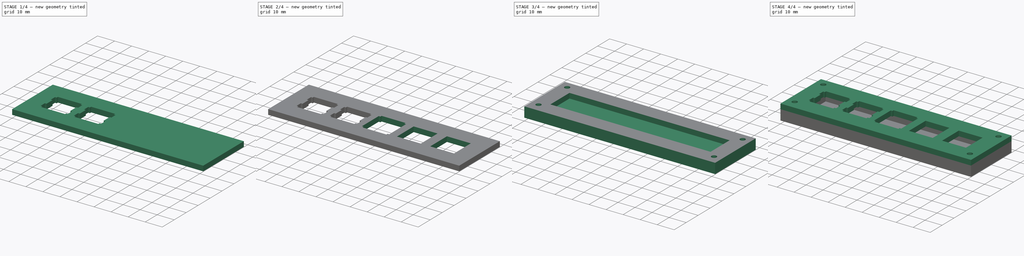
[diagram: build sequence overview — one tinted view per stage of 4, left to right]
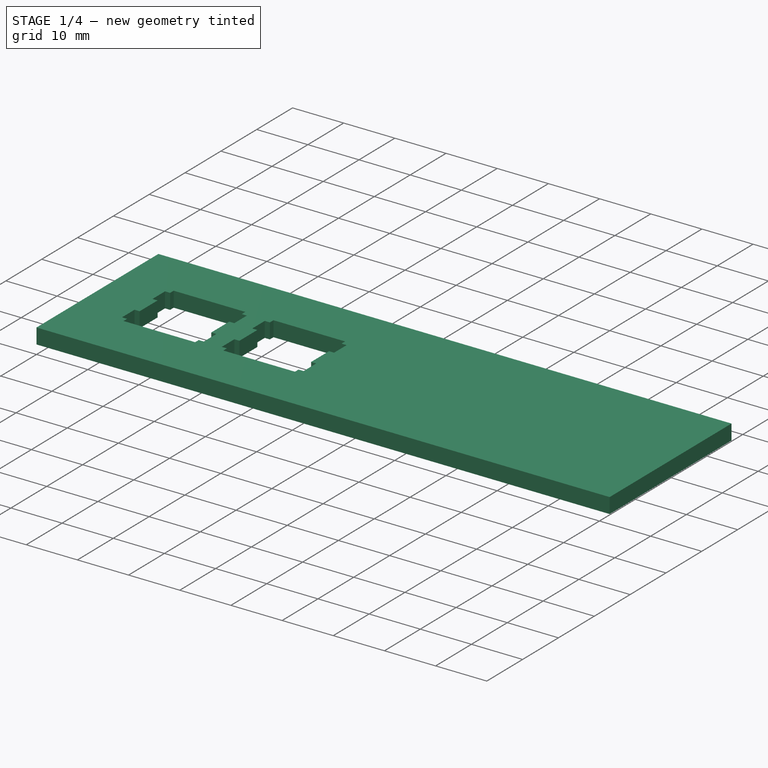
[diagram: stage 1 of 4 — iso view after this stage's code; geometry added in this stage tinted green]
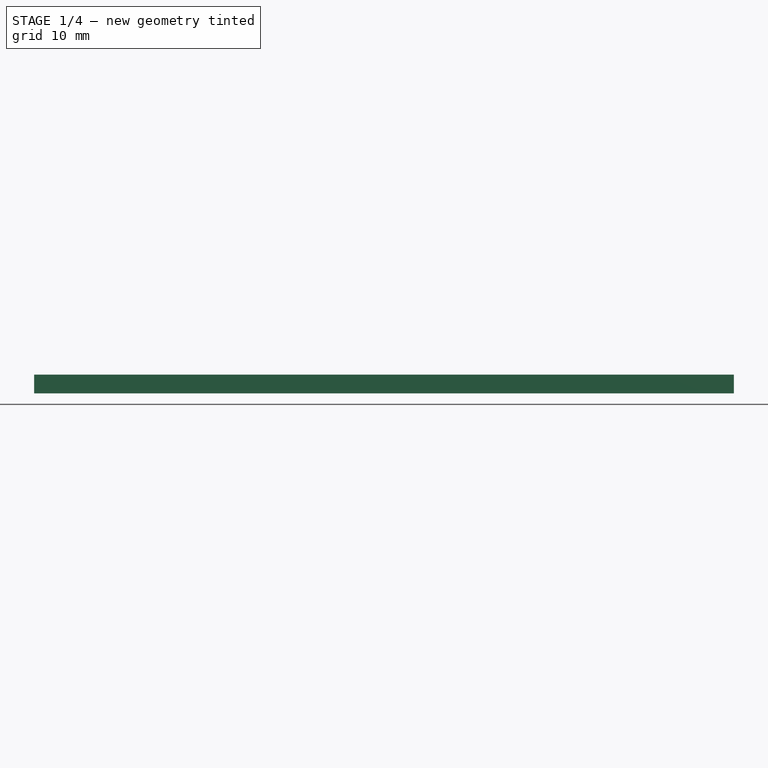
[diagram: stage 1 of 4 — front view after this stage's code; geometry added in this stage tinted green]
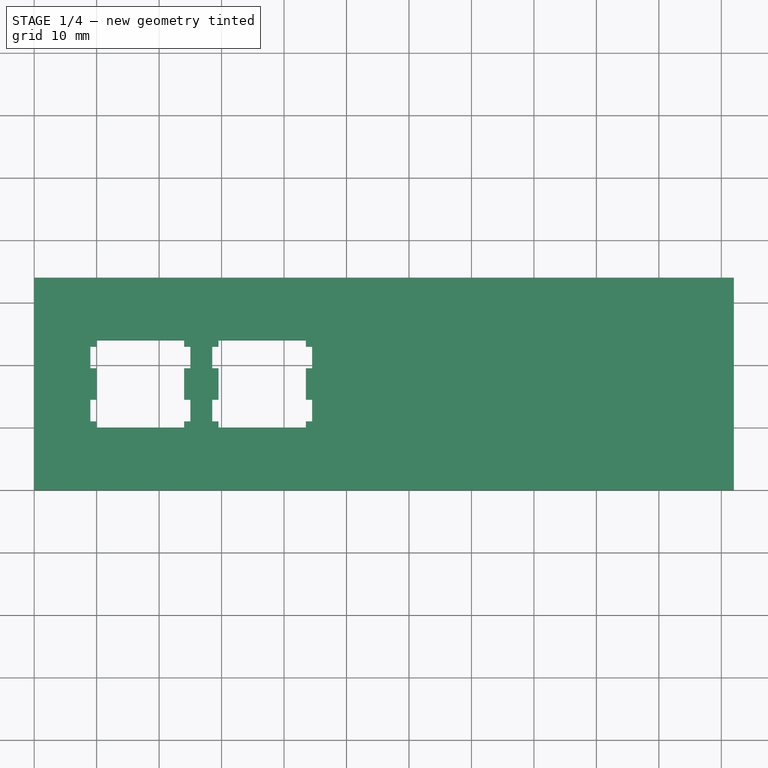
[diagram: stage 1 of 4 — top view after this stage's code; geometry added in this stage tinted green]
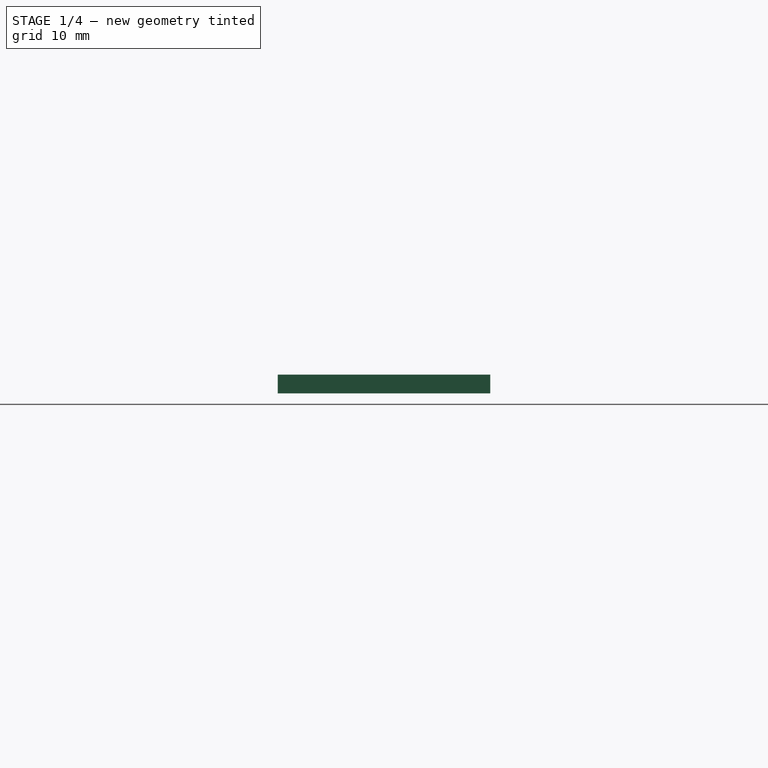
[diagram: stage 1 of 4 — right view after this stage's code; geometry added in this stage tinted green]
FCSTD DOCUMENT  (FreeCAD 0.16R6706 (Git))
Label: pictum_test
License: All rights reserved
LicenseURL: http://en.wikipedia.org/wiki/All_rights_reserved
objects: Sketcher::SketchObject×9, PartDesign::Pocket×6, Drawing::FeatureViewPart×4, PartDesign::Pad×3, App::DocumentObjectGroup×3, Drawing::FeaturePage×2
note: 27 computed .brp shape members not serialized (recipe doc carries the construction recipe); baked Part::Feature solids carry a one-line shape summary decoded from their .brp

FEATURE [Sketcher::SketchObject] Sketch003
  Placement = pos=(0,0,6) rot=(0,0,1;0rad)
  sketch-geometry (4):
    g0: LineSegment StartX=0 StartY=34 StartZ=0 EndX=112 EndY=34 EndZ=0
    g1: LineSegment StartX=112 StartY=34 StartZ=0 EndX=112 EndY=0 EndZ=0
    g2: LineSegment StartX=112 StartY=0 StartZ=0 EndX=0 EndY=0 EndZ=0
    g3: LineSegment StartX=0 StartY=0 StartZ=0 EndX=0 EndY=34 EndZ=0
  constraints (11):
    c: Coincident(g0,g1)
    c: Coincident(g1,g2)
    c: Coincident(g2,g3)
    c: Coincident(g3,g0)
    c: Horizontal(g0)
    c: Horizontal(g2)
    c: Vertical(g1)
    c: Vertical(g3)
    c: DistanceX(g2,g2) = 112
    c: DistanceY(g1,g1) = 34
    c: Coincident(g2,g-1)
FEATURE [PartDesign::Pad] Pad
  Length = 3
  Length2 = 100
  Placement = pos=(0,0,6) rot=(0,0,1;0rad)
  Sketch = -> Sketch003
  Type = 0
FEATURE [Sketcher::SketchObject] Sketch
  ExternalGeometry = -> [Pad]
  Placement = pos=(0,0,9) rot=(0,0,1;0rad)
  Support = -> Pad [Face6]
  sketch-geometry (40):
    g0: LineSegment StartX=10 StartY=24 StartZ=0 EndX=24 EndY=24 EndZ=0
    g1: LineSegment StartX=24 StartY=24 StartZ=0 EndX=24 EndY=23 EndZ=0
    g2: LineSegment StartX=24 StartY=23 StartZ=0 EndX=25 EndY=23 EndZ=0
    g3: LineSegment StartX=25 StartY=23 StartZ=0 EndX=25 EndY=19.5 EndZ=0
    g4: LineSegment StartX=25 StartY=19.5 StartZ=0 EndX=24 EndY=19.5 EndZ=0
    g5: LineSegment StartX=24 StartY=19.5 StartZ=0 EndX=24 EndY=14.5 EndZ=0
    g6: LineSegment StartX=24 StartY=14.5 StartZ=0 EndX=25 EndY=14.5 EndZ=0
    g7: LineSegment StartX=25 StartY=14.5 StartZ=0 EndX=25 EndY=11 EndZ=0
    g8: LineSegment StartX=25 StartY=11 StartZ=0 EndX=24 EndY=11 EndZ=0
    g9: LineSegment StartX=24 StartY=11 StartZ=0 EndX=24 EndY=10 EndZ=0
    g10: LineSegment StartX=24 StartY=10 StartZ=0 EndX=10 EndY=10 EndZ=0
    g11: LineSegment StartX=10 StartY=10 StartZ=0 EndX=10 EndY=11 EndZ=0
    g12: LineSegment StartX=10 StartY=11 StartZ=0 EndX=9 EndY=11 EndZ=0
    g13: LineSegment StartX=9 StartY=11 StartZ=0 EndX=9 EndY=14.5 EndZ=0
    g14: LineSegment StartX=9 StartY=14.5 StartZ=0 EndX=10 EndY=14.5 EndZ=0
    g15: LineSegment StartX=10 StartY=14.5 StartZ=0 EndX=10 EndY=19.5 EndZ=0
    g16: LineSegment StartX=10 StartY=19.5 StartZ=0 EndX=9 EndY=19.5 EndZ=0
    g17: LineSegment StartX=9 StartY=19.5 StartZ=0 EndX=9 EndY=23 EndZ=0
    g18: LineSegment StartX=9 StartY=23 StartZ=0 EndX=10 EndY=23 EndZ=0
    g19: LineSegment StartX=10 StartY=23 StartZ=0 EndX=10 EndY=24 EndZ=0
    g20: LineSegment StartX=29.5 StartY=24 StartZ=0 EndX=43.5 EndY=24 EndZ=0
    g21: LineSegment StartX=43.5 StartY=24 StartZ=0 EndX=43.5 EndY=23 EndZ=0
    g22: LineSegment StartX=43.5 StartY=23 StartZ=0 EndX=44.5 EndY=23 EndZ=0
    g23: LineSegment StartX=44.5 StartY=23 StartZ=0 EndX=44.5 EndY=19.5 EndZ=0
    g24: LineSegment StartX=44.5 StartY=19.5 StartZ=0 EndX=43.5 EndY=19.5 EndZ=0
    g25: LineSegment StartX=43.5 StartY=19.5 StartZ=0 EndX=43.5 EndY=14.5 EndZ=0
    g26: LineSegment StartX=43.5 StartY=14.5 StartZ=0 EndX=44.5 EndY=14.5 EndZ=0
    g27: LineSegment StartX=44.5 StartY=14.5 StartZ=0 EndX=44.5 EndY=11 EndZ=0
    g28: LineSegment StartX=44.5 StartY=11 StartZ=0 EndX=43.5 EndY=11 EndZ=0
    g29: LineSegment StartX=43.5 StartY=11 StartZ=0 EndX=43.5 EndY=10 EndZ=0
    g30: LineSegment StartX=43.5 StartY=10 StartZ=0 EndX=29.5 EndY=10 EndZ=0
    g31: LineSegment StartX=29.5 StartY=10 StartZ=0 EndX=29.5 EndY=11 EndZ=0
    g32: LineSegment StartX=29.5 StartY=11 StartZ=0 EndX=28.5 EndY=11 EndZ=0
    g33: LineSegment StartX=28.5 StartY=11 StartZ=0 EndX=28.5 EndY=14.5 EndZ=0
    g34: LineSegment StartX=28.5 StartY=14.5 StartZ=0 EndX=29.5 EndY=14.5 EndZ=0
    g35: LineSegment StartX=29.5 StartY=14.5 StartZ=0 EndX=29.5 EndY=19.5 EndZ=0
    g36: LineSegment StartX=29.5 StartY=19.5 StartZ=0 EndX=28.5 EndY=19.5 EndZ=0
    g37: LineSegment StartX=28.5 StartY=19.5 StartZ=0 EndX=28.5 EndY=23 EndZ=0
    g38: LineSegment StartX=28.5 StartY=23 StartZ=0 EndX=29.5 EndY=23 EndZ=0
    g39: LineSegment StartX=29.5 StartY=23 StartZ=0 EndX=29.5 EndY=24 EndZ=0
  constraints (121):
    c: Horizontal(g0)
    c: Coincident(g0,g1)
    c: Vertical(g1)
    c: Coincident(g1,g2)
    c: Horizontal(g2)
    c: Coincident(g2,g3)
    c: Vertical(g3)
    c: Coincident(g3,g4)
    c: Coincident(g4,g5)
    c: Vertical(g5)
    c: Coincident(g5,g6)
    c: Horizontal(g6)
    c: Coincident(g6,g7)
    c: Vertical(g7)
    c: Coincident(g7,g8)
    c: Horizontal(g8)
    c: Coincident(g8,g9)
    c: Vertical(g9)
    c: Coincident(g9,g10)
    c: Horizontal(g10)
    c: Coincident(g10,g11)
    c: Vertical(g11)
    c: Coincident(g11,g12)
    c: Horizontal(g12)
    c: Coincident(g12,g13)
    c: Vertical(g13)
    c: Coincident(g13,g14)
    c: Horizontal(g14)
    c: Coincident(g14,g15)
    c: Vertical(g15)
    c: Coincident(g15,g16)
    c: Horizontal(g16)
    c: Coincident(g16,g17)
    c: Vertical(g17)
    c: Coincident(g17,g18)
    c: Horizontal(g18)
    c: Coincident(g18,g19)
    c: Coincident(g19,g0)
    c: Vertical(g19)
    c: Horizontal(g4)
    c: Equal(g15,g5)
    c: DistanceX(g0,g0) = 14
    c: DistanceY(g19,g19) = 1
    c: DistanceY(g15,g15) = 5
    c: DistanceY(g3,g3) = 3.5
    c: DistanceY(g0,g-4) = 10
    c: Horizontal(g20)
    c: Coincident(g20,g21)
    c: Vertical(g21)
    c: Coincident(g21,g22)
    c: Horizontal(g22)
    c: Coincident(g22,g23)
    c: Vertical(g23)
    c: Coincident(g23,g24)
    c: Coincident(g24,g25)
    c: Vertical(g25)
    c: Coincident(g25,g26)
    c: Horizontal(g26)
    c: Coincident(g26,g27)
    c: Vertical(g27)
    c: Coincident(g27,g28)
    c: Horizontal(g28)
    c: Coincident(g28,g29)
    c: Vertical(g29)
    c: Coincident(g29,g30)
    c: Horizontal(g30)
    c: Coincident(g30,g31)
    c: Vertical(g31)
    c: Coincident(g31,g32)
    c: Horizontal(g32)
    c: Coincident(g32,g33)
    c: Vertical(g33)
    c: Coincident(g33,g34)
    c: Horizontal(g34)
    c: Coincident(g34,g35)
    c: Vertical(g35)
    c: Coincident(g35,g36)
    c: Horizontal(g36)
    c: Coincident(g36,g37)
    c: Vertical(g37)
    c: Coincident(g37,g38)
    c: Horizontal(g38)
    c: Coincident(g38,g39)
    c: Coincident(g39,g20)
    c: Vertical(g39)
    c: Horizontal(g24)
    c: DistanceX(g-4,g15) = 10
    c: DistanceX(g5,g34) = 5.5
    c: DistanceY(g20,g-4) = 10
    c: Equal(g12,g11)
    c: Equal(g11,g14)
    c: Equal(g14,g16)
    c: Equal(g16,g18)
    c: Equal(g18,g19)
    c: Equal(g19,g1)
    c: Equal(g1,g2)
    c: Equal(g2,g4)
    c: Equal(g4,g6)
    c: Equal(g6,g8)
    c: Equal(g8,g9)
    c: Equal(g36,g34)
    c: Equal(g34,g32)
    c: Equal(g32,g31)
    c: Equal(g31,g29)
    c: Equal(g29,g28)
    c: Equal(g28,g26)
    c: Equal(g26,g24)
    c: Equal(g24,g22)
    c: Equal(g22,g21)
    c: Equal(g21,g39)
    c: Equal(g39,g38)
    c: Equal(g13,g17)
    c: Equal(g17,g3)
    c: Equal(g3,g7)
    c: DistanceX(g22,g22) = 1
    c: Equal(g37,g33)
    c: Equal(g33,g27)
    c: Equal(g27,g23)
    c: DistanceY(g37,g37) = 3.5
    c: DistanceY(g35,g35) = 5
    c: DistanceX(g30,g30) = 14
FEATURE [PartDesign::Pocket] Pocket
  Length = 5
  Placement = pos=(0,0,6) rot=(0,0,1;0rad)
  Sketch = -> Sketch
  Type = 2
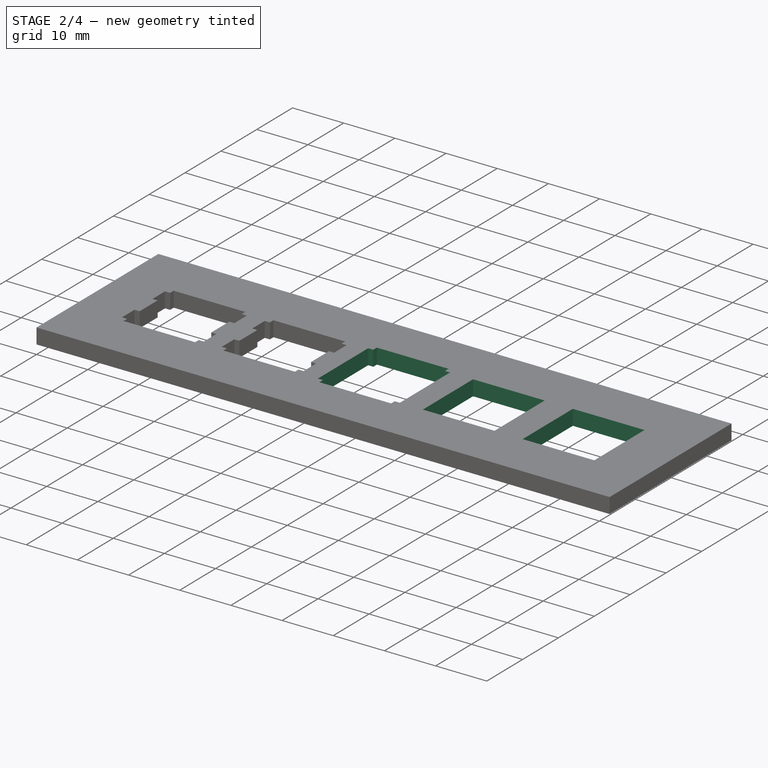
[diagram: stage 2 of 4 — iso view after this stage's code; geometry added in this stage tinted green]
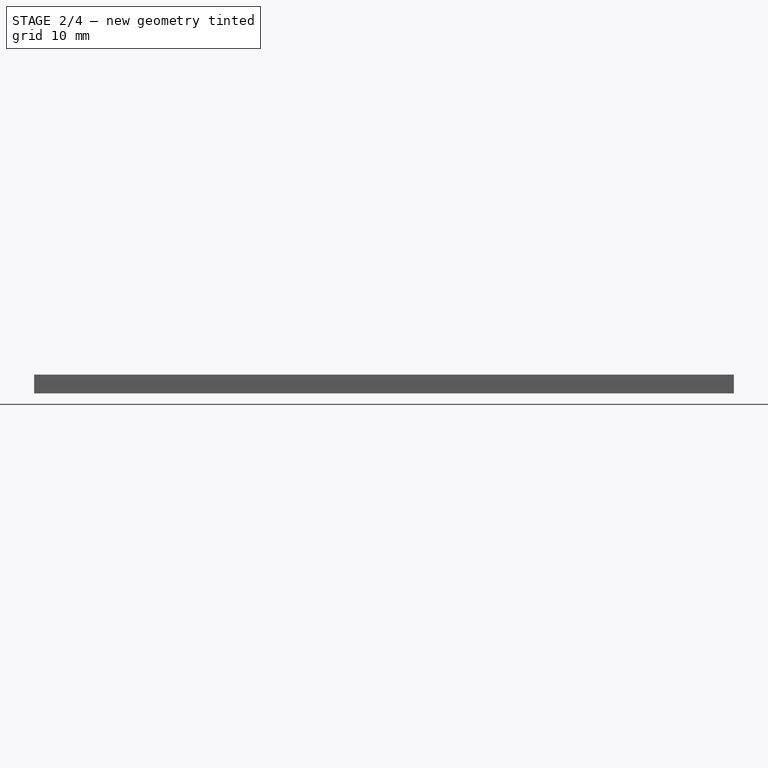
[diagram: stage 2 of 4 — front view after this stage's code; geometry added in this stage tinted green]
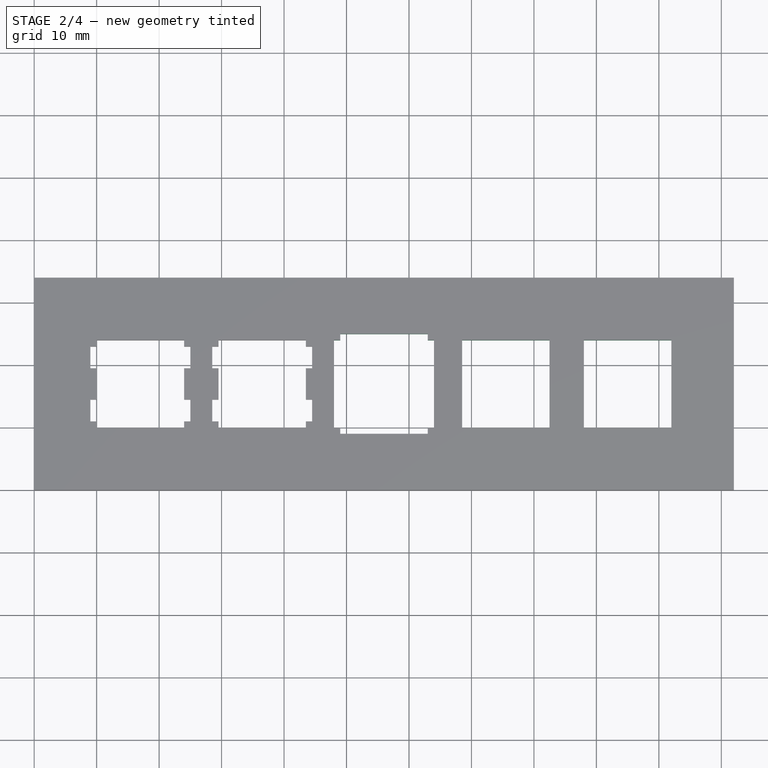
[diagram: stage 2 of 4 — top view after this stage's code; geometry added in this stage tinted green]
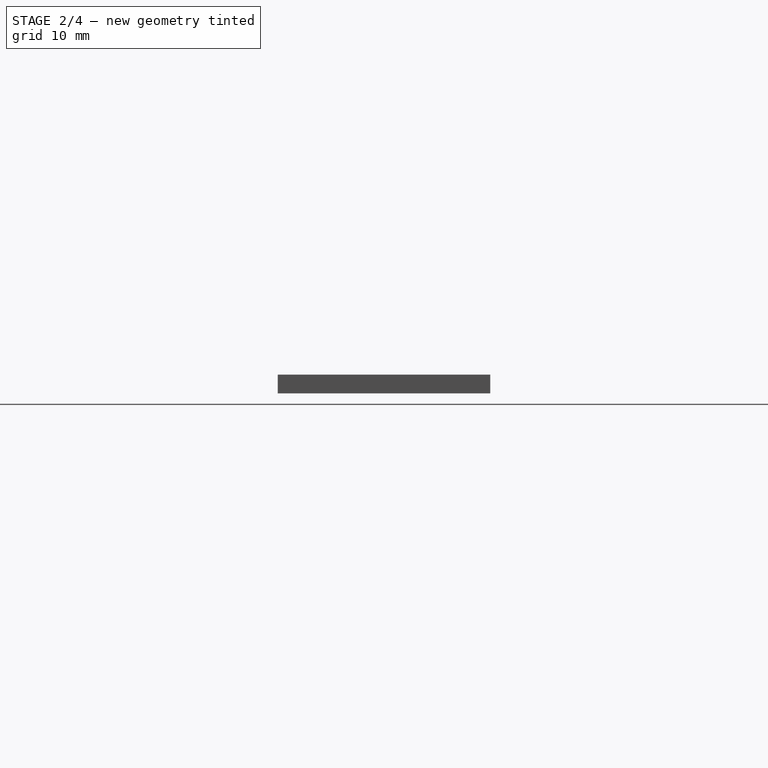
[diagram: stage 2 of 4 — right view after this stage's code; geometry added in this stage tinted green]
FEATURE [Sketcher::SketchObject] Sketch010
  ExternalGeometry = -> [Pocket]
  Placement = pos=(0,0,9) rot=(0,0,1;0rad)
  Support = -> Pocket [Face5]
  sketch-geometry (12):
    g0: LineSegment StartX=48 StartY=24 StartZ=0 EndX=49 EndY=24 EndZ=0
    g1: LineSegment StartX=49 StartY=24 StartZ=0 EndX=49 EndY=25 EndZ=0
    g2: LineSegment StartX=49 StartY=25 StartZ=0 EndX=63 EndY=25 EndZ=0
    g3: LineSegment StartX=63 StartY=25 StartZ=0 EndX=63 EndY=24 EndZ=0
    g4: LineSegment StartX=63 StartY=24 StartZ=0 EndX=64 EndY=24 EndZ=0
    g5: LineSegment StartX=64 StartY=24 StartZ=0 EndX=64 EndY=10 EndZ=0
    g6: LineSegment StartX=64 StartY=10 StartZ=0 EndX=63 EndY=10 EndZ=0
    g7: LineSegment StartX=63 StartY=10 StartZ=0 EndX=63 EndY=9 EndZ=0
    g8: LineSegment StartX=63 StartY=9 StartZ=0 EndX=49 EndY=9 EndZ=0
    g9: LineSegment StartX=49 StartY=9 StartZ=0 EndX=49 EndY=10 EndZ=0
    g10: LineSegment StartX=49 StartY=10 StartZ=0 EndX=48 EndY=10 EndZ=0
    g11: LineSegment StartX=48 StartY=10 StartZ=0 EndX=48 EndY=24 EndZ=0
  constraints (38):
    c: Horizontal(g0)
    c: Coincident(g0,g1)
    c: Vertical(g1)
    c: Coincident(g1,g2)
    c: Horizontal(g2)
    c: Coincident(g2,g3)
    c: Vertical(g3)
    c: Coincident(g3,g4)
    c: Horizontal(g4)
    c: Coincident(g4,g5)
    c: Vertical(g5)
    c: Coincident(g5,g6)
    c: Horizontal(g6)
    c: Coincident(g6,g7)
    c: Vertical(g7)
    c: Coincident(g7,g8)
    c: Horizontal(g8)
    c: Coincident(g8,g9)
    c: Vertical(g9)
    c: Coincident(g9,g10)
    c: Horizontal(g10)
    c: Coincident(g10,g11)
    c: Coincident(g11,g0)
    c: Vertical(g11)
    c: Equal(g2,g5)
    c: Equal(g5,g8)
    c: Equal(g8,g11)
    c: DistanceX(g2,g2) = 14
    c: DistanceX(g-3,g0) = 5.5
    c: DistanceY(g0,g-4) = 10
    c: Equal(g9,g10)
    c: Equal(g10,g0)
    c: Equal(g0,g1)
    c: Equal(g1,g3)
    c: Equal(g3,g4)
    c: Equal(g4,g6)
    c: Equal(g6,g7)
    c: DistanceY(g3,g3) = 1
FEATURE [PartDesign::Pocket] Pocket001
  Length = 5
  Placement = pos=(0,0,6) rot=(0,0,1;0rad)
  Sketch = -> Sketch010
  Type = 2
FEATURE [Sketcher::SketchObject] Sketch011
  ExternalGeometry = -> [Pocket001]
  Placement = pos=(0,0,9) rot=(0,0,1;0rad)
  Support = -> Pocket001 [Face5]
  sketch-geometry (8):
    g0: LineSegment StartX=68.5 StartY=24 StartZ=0 EndX=82.5 EndY=24 EndZ=0
    g1: LineSegment StartX=82.5 StartY=24 StartZ=0 EndX=82.5 EndY=10 EndZ=0
    g2: LineSegment StartX=82.5 StartY=10 StartZ=0 EndX=68.5 EndY=10 EndZ=0
    g3: LineSegment StartX=68.5 StartY=10 StartZ=0 EndX=68.5 EndY=24 EndZ=0
    g4: LineSegment StartX=88 StartY=24 StartZ=0 EndX=102 EndY=24 EndZ=0
    g5: LineSegment StartX=102 StartY=24 StartZ=0 EndX=102 EndY=10 EndZ=0
    g6: LineSegment StartX=102 StartY=10 StartZ=0 EndX=88 EndY=10 EndZ=0
    g7: LineSegment StartX=88 StartY=10 StartZ=0 EndX=88 EndY=24 EndZ=0
  constraints (24):
    c: Coincident(g0,g1)
    c: Coincident(g1,g2)
    c: Coincident(g2,g3)
    c: Coincident(g3,g0)
    c: Horizontal(g0)
    c: Horizontal(g2)
    c: Vertical(g1)
    c: Vertical(g3)
    c: DistanceY(g0,g-4) = 10
    c: DistanceX(g2,g2) = 14
    c: DistanceY(g1,g0) = 14
    c: Coincident(g4,g5)
    c: Coincident(g5,g6)
    c: Coincident(g6,g7)
    c: Coincident(g7,g4)
    c: Horizontal(g4)
    c: Horizontal(g6)
    c: Vertical(g5)
    c: Vertical(g7)
    c: DistanceY(g5,g4) = 14
    c: DistanceX(g4,g4) = 14
    c: DistanceX(g-3,g2) = 5.5
    c: DistanceX(g1,g6) = 5.5
    c: DistanceY(g4,g-4) = 10
FEATURE [PartDesign::Pocket] Pocket002
  Length = 5
  Placement = pos=(0,0,6) rot=(0,0,1;0rad)
  Sketch = -> Sketch011
  Type = 2
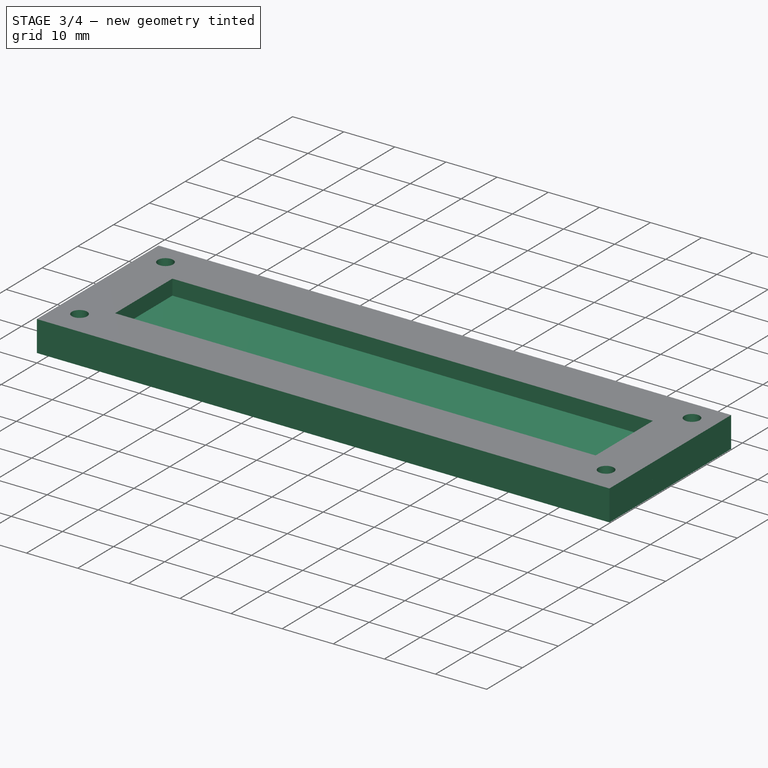
[diagram: stage 3 of 4 — iso view after this stage's code; geometry added in this stage tinted green]
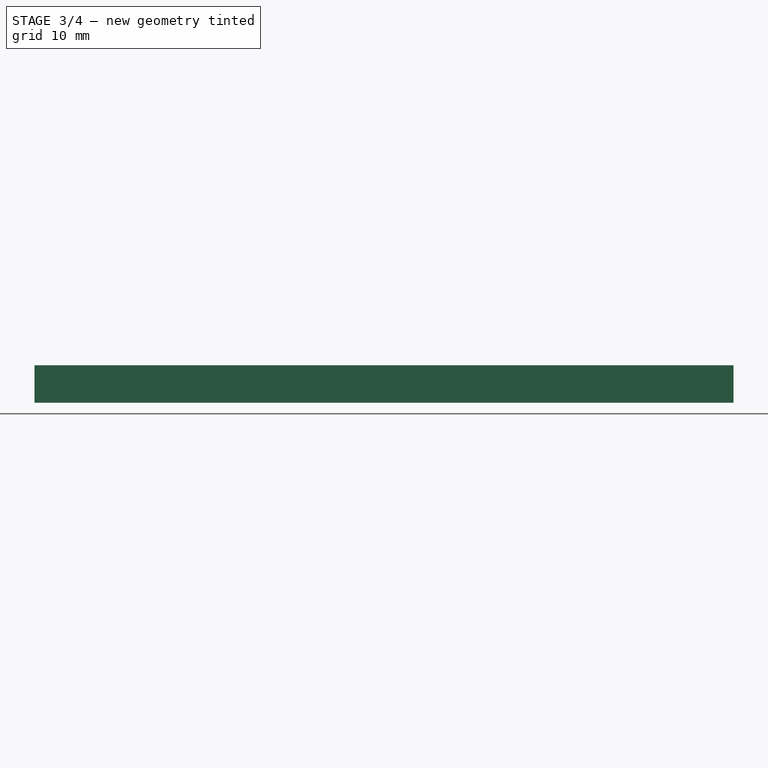
[diagram: stage 3 of 4 — front view after this stage's code; geometry added in this stage tinted green]
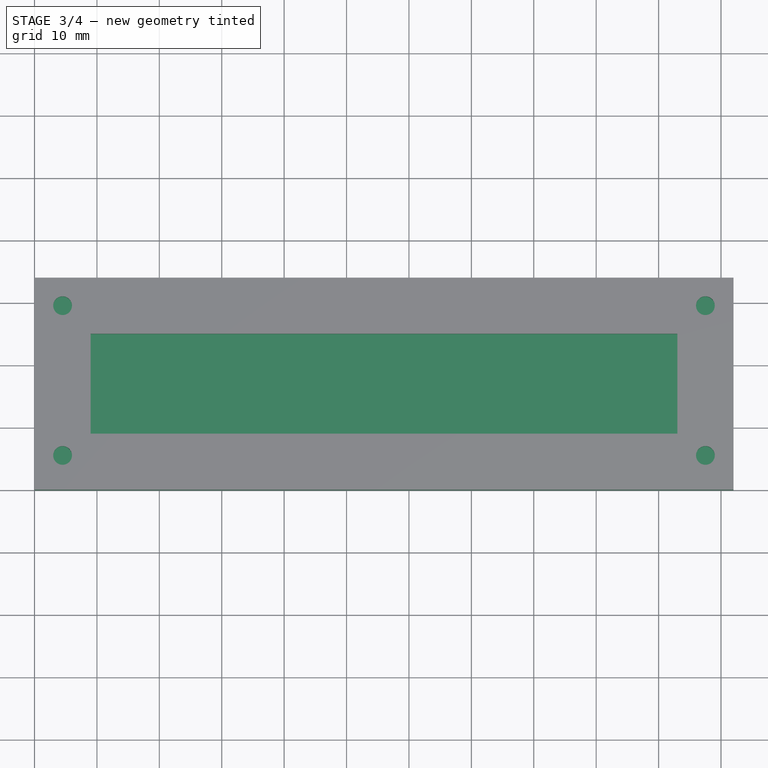
[diagram: stage 3 of 4 — top view after this stage's code; geometry added in this stage tinted green]
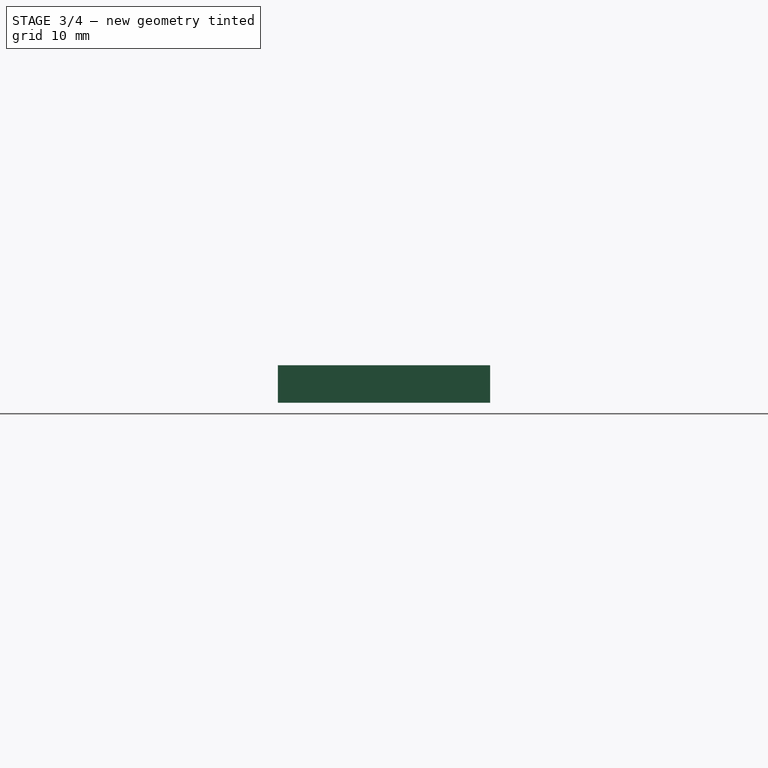
[diagram: stage 3 of 4 — right view after this stage's code; geometry added in this stage tinted green]
FEATURE [Sketcher::SketchObject] Sketch008
  Placement = pos=(0,0,3) rot=(0,0,1;0rad)
  sketch-geometry (8):
    g0: LineSegment StartX=0 StartY=34 StartZ=0 EndX=112 EndY=34 EndZ=0
    g1: LineSegment StartX=112 StartY=34 StartZ=0 EndX=112 EndY=0 EndZ=0
    g2: LineSegment StartX=112 StartY=0 StartZ=0 EndX=0 EndY=0 EndZ=0
    g3: LineSegment StartX=0 StartY=0 StartZ=0 EndX=0 EndY=34 EndZ=0
    g4: LineSegment StartX=9 StartY=25 StartZ=0 EndX=103 EndY=25 EndZ=0
    g5: LineSegment StartX=103 StartY=25 StartZ=0 EndX=103 EndY=9 EndZ=0
    g6: LineSegment StartX=103 StartY=9 StartZ=0 EndX=9 EndY=9 EndZ=0
    g7: LineSegment StartX=9 StartY=9 StartZ=0 EndX=9 EndY=25 EndZ=0
  constraints (23):
    c: Coincident(g0,g1)
    c: Coincident(g1,g2)
    c: Coincident(g2,g3)
    c: Coincident(g3,g0)
    c: Horizontal(g0)
    c: Horizontal(g2)
    c: Vertical(g1)
    c: Vertical(g3)
    c: DistanceX(g2,g2) = 112
    c: DistanceY(g1,g1) = 34
    c: Coincident(g4,g5)
    c: Coincident(g5,g6)
    c: Coincident(g6,g7)
    c: Coincident(g7,g4)
    c: Horizontal(g4)
    c: Horizontal(g6)
    c: Vertical(g5)
    c: Vertical(g7)
    c: DistanceY(g4,g0) = 9
    c: DistanceX(g2,g6) = 9
    c: DistanceX(g5,g1) = 9
    c: Coincident(g-1,g2)
    c: DistanceY(g-1,g6) = 9
FEATURE [PartDesign::Pad] Pad001
  Length = 3
  Length2 = 100
  Placement = pos=(0,0,3) rot=(0,0,1;0rad)
  Sketch = -> Sketch008
  Type = 0
FEATURE [Sketcher::SketchObject] Sketch009
  sketch-geometry (4):
    g0: LineSegment StartX=0 StartY=34 StartZ=0 EndX=112 EndY=34 EndZ=0
    g1: LineSegment StartX=112 StartY=34 StartZ=0 EndX=112 EndY=0 EndZ=0
    g2: LineSegment StartX=112 StartY=0 StartZ=0 EndX=0 EndY=0 EndZ=0
    g3: LineSegment StartX=0 StartY=0 StartZ=0 EndX=0 EndY=34 EndZ=0
  constraints (11):
    c: Coincident(g0,g1)
    c: Coincident(g1,g2)
    c: Coincident(g2,g3)
    c: Coincident(g3,g0)
    c: Horizontal(g0)
    c: Horizontal(g2)
    c: Vertical(g1)
    c: Vertical(g3)
    c: DistanceX(g2,g2) = 112
    c: DistanceY(g1,g1) = 34
    c: Coincident(g2,g-1)
FEATURE [PartDesign::Pad] Pad002
  Length = 3
  Length2 = 100
  Sketch = -> Sketch009
  Type = 0
FEATURE [App::DocumentObjectGroup] Grupp002  label="3_test"
  Group = -> [Pad002,Pocket004]
FEATURE [PartDesign::Pocket] Pocket005
  Length = 3
  Placement = pos=(0,0,3) rot=(0,0,1;0rad)
  Sketch = -> Sketch013
  Type = 0
FEATURE [App::DocumentObjectGroup] Grupp001  label="2_test"
  Group = -> [Pad001,Pocket005]
FEATURE [Drawing::FeatureViewPart] View
  Direction = (0,0,1)
  HiddenWidth = 0.15
  LineWidth = 0.35
  Rotation = 90
  ShowHiddenLines = false
  ShowSmoothLines = false
  Source = -> Pocket003
  Tolerance = 0.05
  ViewResult = <blob: 3093 chars omitted>
  Visible = true
  X = 5
  Y = 5
FEATURE [Drawing::FeatureViewPart] View001
  Direction = (0,0,1)
  HiddenWidth = 0.15
  LineWidth = 0.35
  Rotation = 90
  ShowHiddenLines = false
  ShowSmoothLines = false
  Source = -> Pocket005
  Tolerance = 0.05
  ViewResult = <g id="View001"\n   transform="rotate(90,45,5) translate(45,5) scale(1,1)"\n  >\n<g   stroke="rgb(0, 0, 0)"\n   stroke-width="0.35"\n   stroke-linecap="butt"\n   stroke-linejoin="miter"\n   fill="none"\n   transform="scale(1,-1)"\n  >\n<path id= "1" d=" M 0 34 L 112 34 " />\n<path id= "2" d=" M 0 0 L 0 34 " />\n<path id= "3" d=" M 112 34 L 112 0 " />\n<path id= "4" d=" M 112 0 L 0 0 " />\n<circle cx ="4.5" cy ="5.5" r ="1.5" /><circle cx ="4.5" cy ="29.5" r ="1.5" /><circle cx ="107.5" cy ="29.5" r ="1.5" /><path id= "8" d=" M 9 25 L 103 25 " />\n<path id= "9" d=" M 9 9 L 9 25 " />\n<path id= "10" d=" M 103 25 L 103 9 " />\n<path id= "11" d=" M 103 9 L 9 9 " />\n<circle cx ="107.5" cy ="5.5" r ="1.5" /></g>\n</g>
  Visible = true
  X = 45
  Y = 5
FEATURE [Drawing::FeatureViewPart] View002
  Direction = (0,0,1)
  HiddenWidth = 0.15
  LineWidth = 0.35
  Rotation = 90
  ShowHiddenLines = false
  ShowSmoothLines = false
  Source = -> Pocket004
  Tolerance = 0.05
  ViewResult = <g id="View002"\n   transform="rotate(90,85,5) translate(85,5) scale(1,1)"\n  >\n<g   stroke="rgb(0, 0, 0)"\n   stroke-width="0.35"\n   stroke-linecap="butt"\n   stroke-linejoin="miter"\n   fill="none"\n   transform="scale(1,-1)"\n  >\n<path id= "1" d=" M 0 34 L 112 34 " />\n<path id= "2" d=" M 0 0 L 0 34 " />\n<path id= "3" d=" M 112 34 L 112 0 " />\n<path id= "4" d=" M 112 0 L 0 0 " />\n<circle cx ="4.5" cy ="5.5" r ="1.5" /><circle cx ="4.5" cy ="29.5" r ="1.5" /><circle cx ="107.5" cy ="5.5" r ="1.5" /><circle cx ="107.5" cy ="29.5" r ="1.5" /></g>\n</g>
  Visible = true
  X = 85
  Y = 5
FEATURE [Drawing::FeaturePage] Page  label="full"
  Group = -> [View,View001,View002]
FEATURE [Drawing::FeatureViewPart] View003
  Direction = (0,0,1)
  HiddenWidth = 0.15
  LineWidth = 0.35
  Rotation = 90
  ShowHiddenLines = false
  ShowSmoothLines = false
  Source = -> Pocket003
  Tolerance = 0.05
  ViewResult = <blob: 3096 chars omitted>
  Visible = true
  X = 5
  Y = 5
FEATURE [Drawing::FeaturePage] Page001  label="single"
  Group = -> [View003]
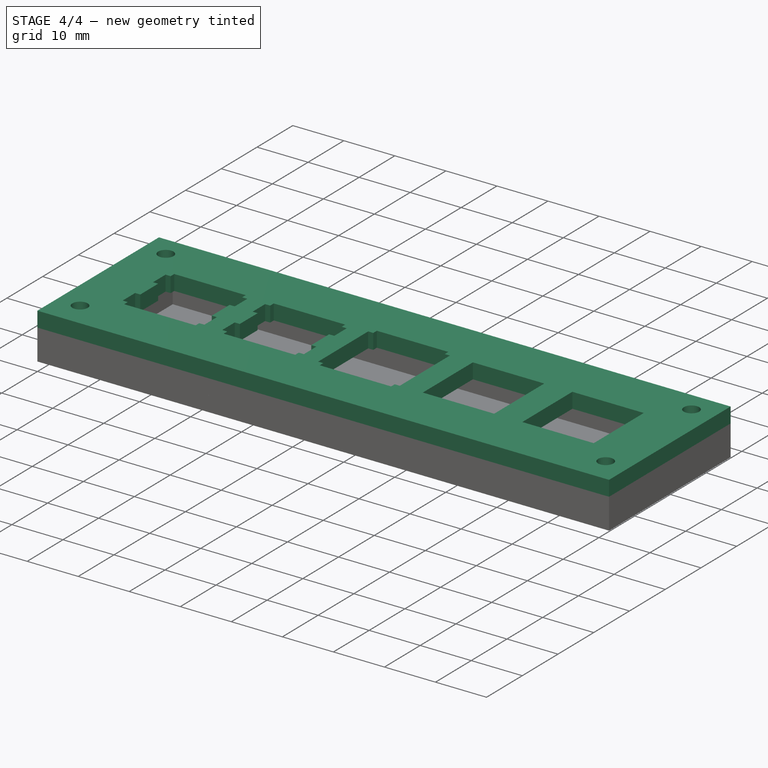
[diagram: stage 4 of 4 — iso view after this stage's code; geometry added in this stage tinted green]
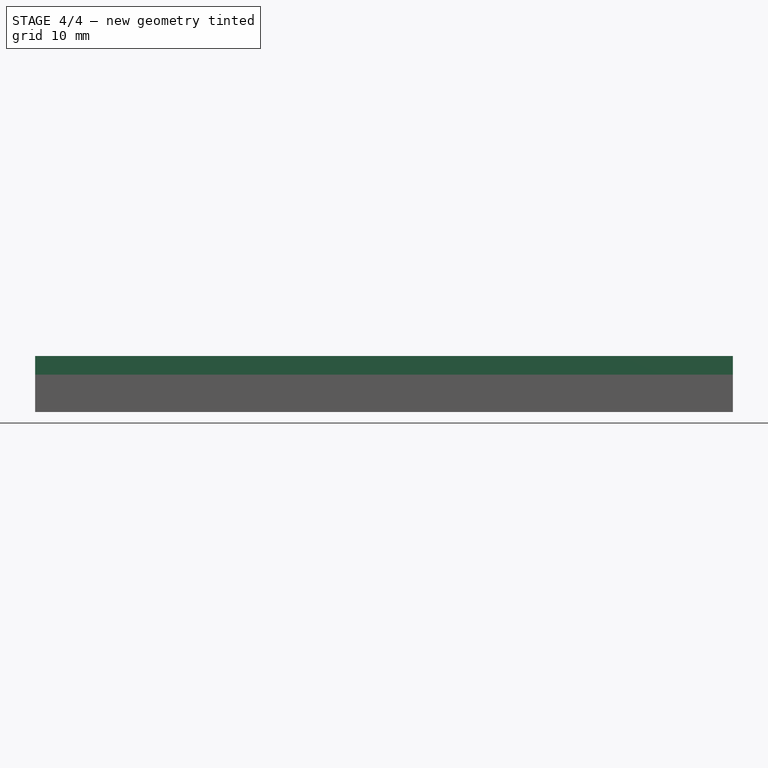
[diagram: stage 4 of 4 — front view after this stage's code; geometry added in this stage tinted green]
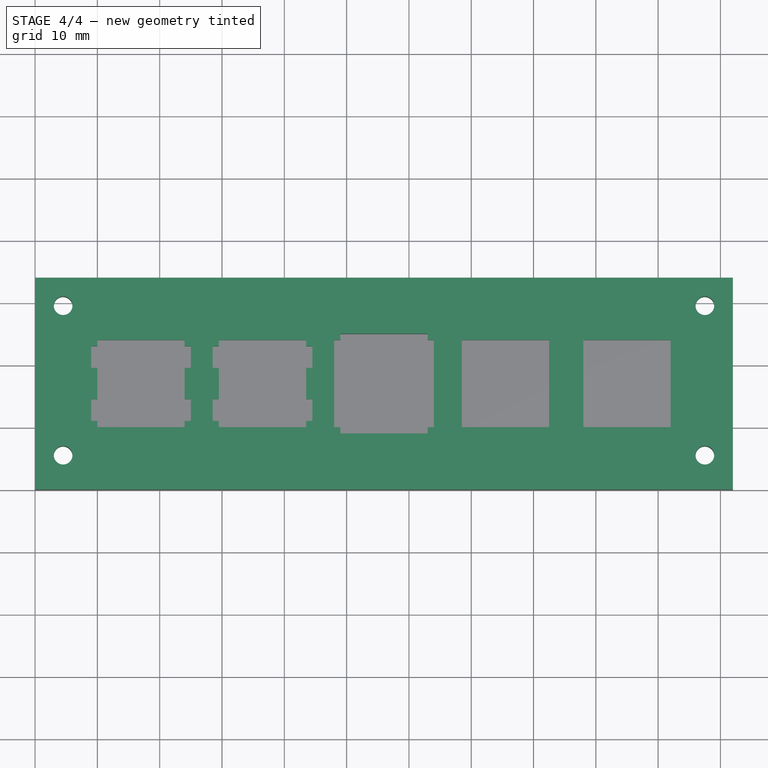
[diagram: stage 4 of 4 — top view after this stage's code; geometry added in this stage tinted green]
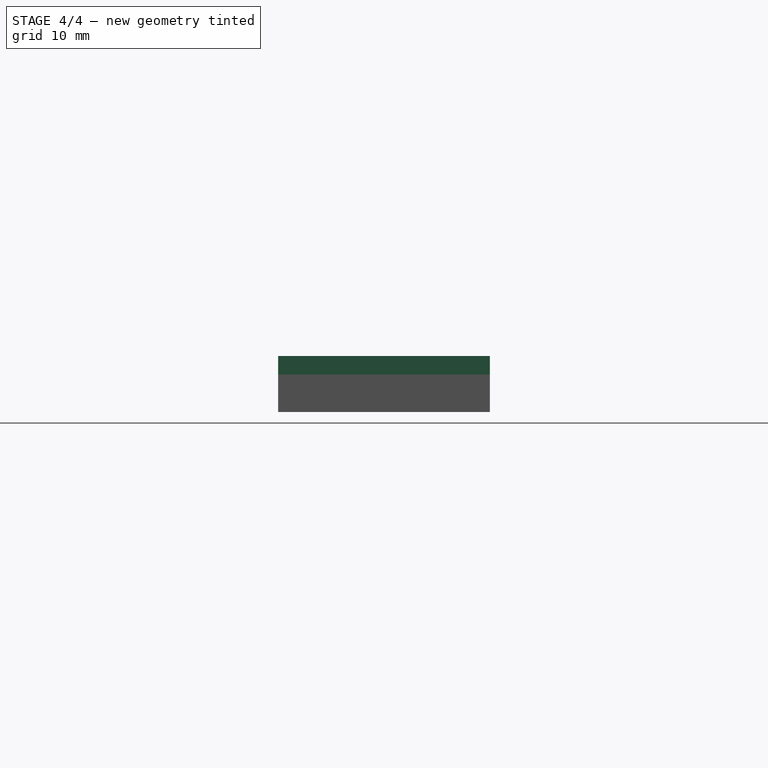
[diagram: stage 4 of 4 — right view after this stage's code; geometry added in this stage tinted green]
FEATURE [Sketcher::SketchObject] Sketch012
  ExternalGeometry = -> [Pocket002]
  Placement = pos=(0,0,9) rot=(0,0,1;0rad)
  Support = -> Pocket002 [Face5]
  sketch-geometry (8):
    g0: LineSegment [constr] StartX=4.5 StartY=5.5 StartZ=0 EndX=107.5 EndY=5.5 EndZ=0
    g1: LineSegment [constr] StartX=107.5 StartY=5.5 StartZ=0 EndX=107.5 EndY=29.5 EndZ=0
    g2: LineSegment [constr] StartX=107.5 StartY=29.5 StartZ=0 EndX=4.5 EndY=29.5 EndZ=0
    g3: LineSegment [constr] StartX=4.5 StartY=29.5 StartZ=0 EndX=4.5 EndY=5.5 EndZ=0
    g4: Circle CenterX=4.5 CenterY=29.5 CenterZ=0 NormalX=0 NormalY=0 NormalZ=1 Radius=1.5
    g5: Circle CenterX=107.5 CenterY=29.5 CenterZ=0 NormalX=0 NormalY=0 NormalZ=1 Radius=1.5
    g6: Circle CenterX=107.5 CenterY=5.5 CenterZ=0 NormalX=0 NormalY=0 NormalZ=1 Radius=1.5
    g7: Circle CenterX=4.5 CenterY=5.5 CenterZ=0 NormalX=0 NormalY=0 NormalZ=1 Radius=1.5
  constraints (19):
    c: Coincident(g0,g1)
    c: Coincident(g1,g2)
    c: Coincident(g2,g3)
    c: Coincident(g3,g0)
    c: Horizontal(g0)
    c: Horizontal(g2)
    c: Vertical(g1)
    c: Vertical(g3)
    c: DistanceX(g-1,g0) = 4.5
    c: DistanceY(g-1,g0) = 5.5
    c: DistanceY(g2,g-3) = 4.5
    c: DistanceX(g1,g-3) = 4.5
    c: Coincident(g4,g2)
    c: Radius(g4) = 1.5
    c: Equal(g4,g5) = 1.5
    c: Coincident(g5,g1)
    c: Coincident(g6,g0)
    c: Coincident(g7,g0)
    c: Radius(g6) = 1.5
FEATURE [PartDesign::Pocket] Pocket003
  Length = 3
  Placement = pos=(0,0,6) rot=(0,0,1;0rad)
  Sketch = -> Sketch012
  Type = 0
FEATURE [App::DocumentObjectGroup] Grupp  label="1_test"
  Group = -> [Pocket,Pad,Pocket001,Pocket002,Pocket003]
FEATURE [Sketcher::SketchObject] Sketch013
  ExternalGeometry = -> [Pocket002]
  Placement = pos=(0,0,6) rot=(0,0,1;0rad)
  Support = -> Pad001 [Face10]
  sketch-geometry (8):
    g0: LineSegment [constr] StartX=4.5 StartY=5.5 StartZ=0 EndX=107.5 EndY=5.5 EndZ=0
    g1: LineSegment [constr] StartX=107.5 StartY=5.5 StartZ=0 EndX=107.5 EndY=29.5 EndZ=0
    g2: LineSegment [constr] StartX=107.5 StartY=29.5 StartZ=0 EndX=4.5 EndY=29.5 EndZ=0
    g3: LineSegment [constr] StartX=4.5 StartY=29.5 StartZ=0 EndX=4.5 EndY=5.5 EndZ=0
    g4: Circle CenterX=4.5 CenterY=29.5 CenterZ=0 NormalX=0 NormalY=0 NormalZ=1 Radius=1.5
    g5: Circle CenterX=107.5 CenterY=29.5 CenterZ=0 NormalX=0 NormalY=0 NormalZ=1 Radius=1.5
    g6: Circle CenterX=107.5 CenterY=5.5 CenterZ=0 NormalX=0 NormalY=0 NormalZ=1 Radius=1.5
    g7: Circle CenterX=4.5 CenterY=5.5 CenterZ=0 NormalX=0 NormalY=0 NormalZ=1 Radius=1.5
  constraints (19):
    c: Coincident(g0,g1)
    c: Coincident(g1,g2)
    c: Coincident(g2,g3)
    c: Coincident(g3,g0)
    c: Horizontal(g0)
    c: Horizontal(g2)
    c: Vertical(g1)
    c: Vertical(g3)
    c: DistanceX(g-1,g0) = 4.5
    c: DistanceY(g-1,g0) = 5.5
    c: DistanceY(g2,g-3) = 4.5
    c: DistanceX(g1,g-3) = 4.5
    c: Coincident(g4,g2)
    c: Radius(g4) = 1.5
    c: Equal(g4,g5) = 1.5
    c: Coincident(g5,g1)
    c: Coincident(g6,g0)
    c: Coincident(g7,g0)
    c: Radius(g6) = 1.5
FEATURE [Sketcher::SketchObject] Sketch014
  ExternalGeometry = -> [Pocket002]
  Placement = pos=(0,0,3) rot=(0,0,1;0rad)
  Support = -> Pad002 [Face6]
  sketch-geometry (8):
    g0: LineSegment [constr] StartX=4.5 StartY=5.5 StartZ=0 EndX=107.5 EndY=5.5 EndZ=0
    g1: LineSegment [constr] StartX=107.5 StartY=5.5 StartZ=0 EndX=107.5 EndY=29.5 EndZ=0
    g2: LineSegment [constr] StartX=107.5 StartY=29.5 StartZ=0 EndX=4.5 EndY=29.5 EndZ=0
    g3: LineSegment [constr] StartX=4.5 StartY=29.5 StartZ=0 EndX=4.5 EndY=5.5 EndZ=0
    g4: Circle CenterX=4.5 CenterY=29.5 CenterZ=0 NormalX=0 NormalY=0 NormalZ=1 Radius=1.5
    g5: Circle CenterX=107.5 CenterY=29.5 CenterZ=0 NormalX=0 NormalY=0 NormalZ=1 Radius=1.5
    g6: Circle CenterX=107.5 CenterY=5.5 CenterZ=0 NormalX=0 NormalY=0 NormalZ=1 Radius=1.5
    g7: Circle CenterX=4.5 CenterY=5.5 CenterZ=0 NormalX=0 NormalY=0 NormalZ=1 Radius=1.5
  constraints (19):
    c: Coincident(g0,g1)
    c: Coincident(g1,g2)
    c: Coincident(g2,g3)
    c: Coincident(g3,g0)
    c: Horizontal(g0)
    c: Horizontal(g2)
    c: Vertical(g1)
    c: Vertical(g3)
    c: DistanceX(g-1,g0) = 4.5
    c: DistanceY(g-1,g0) = 5.5
    c: DistanceY(g2,g-3) = 4.5
    c: DistanceX(g1,g-3) = 4.5
    c: Coincident(g4,g2)
    c: Radius(g4) = 1.5
    c: Equal(g4,g5) = 1.5
    c: Coincident(g5,g1)
    c: Coincident(g6,g0)
    c: Coincident(g7,g0)
    c: Radius(g6) = 1.5
FEATURE [PartDesign::Pocket] Pocket004
  Length = 5
  Sketch = -> Sketch014
  Type = 2
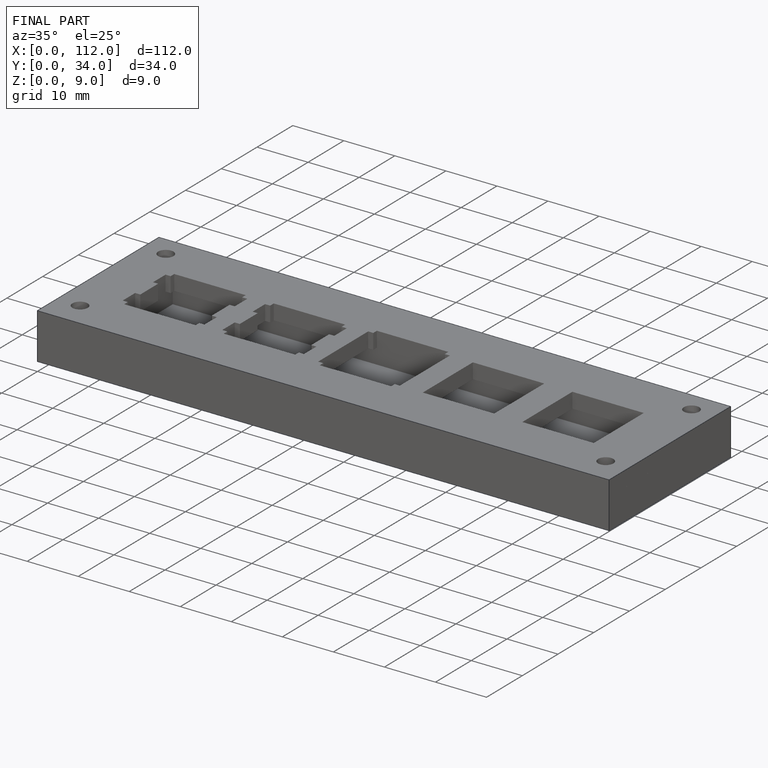
[diagram: finished part — iso view with bounding-box wireframe]
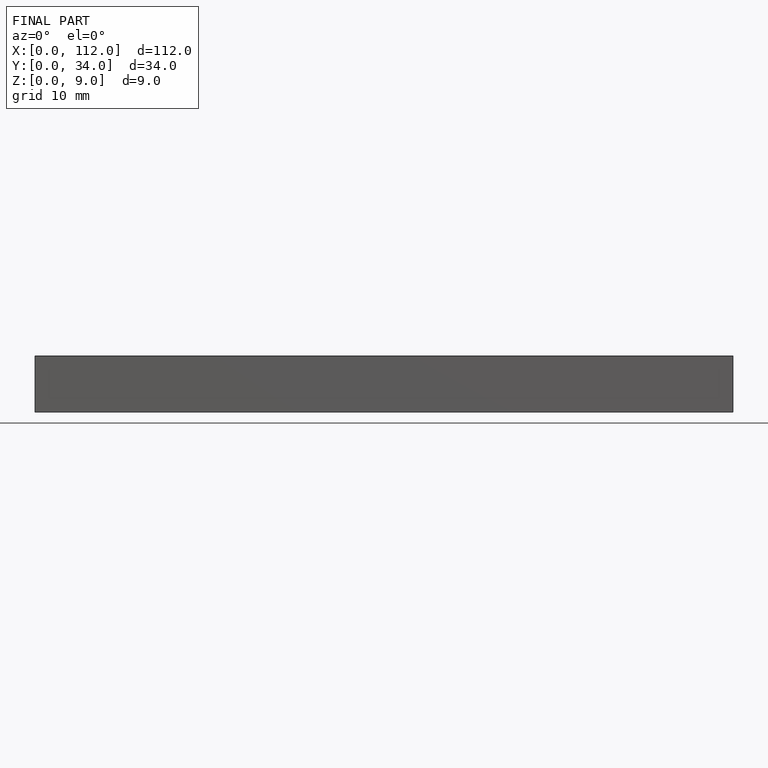
[diagram: finished part — front view with bounding-box wireframe]
